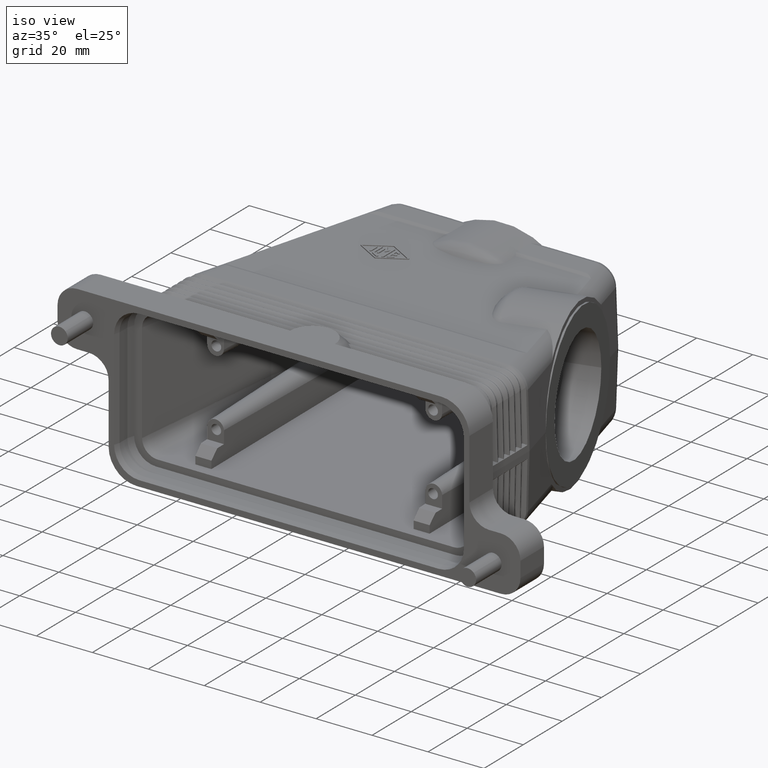
[diagram: clean part render]
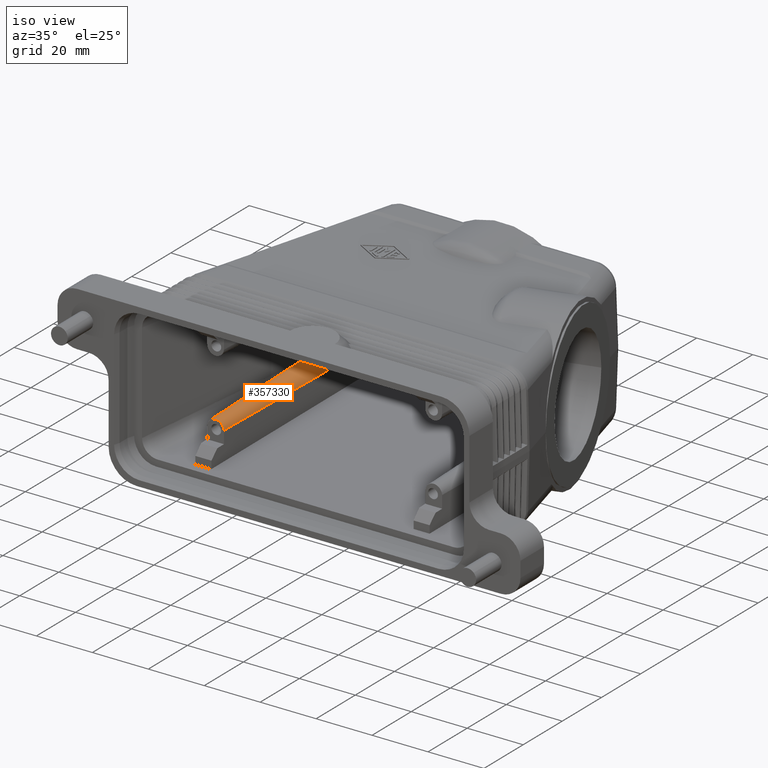
[diagram: same view with one face highlighted and labeled with its STEP entity id]
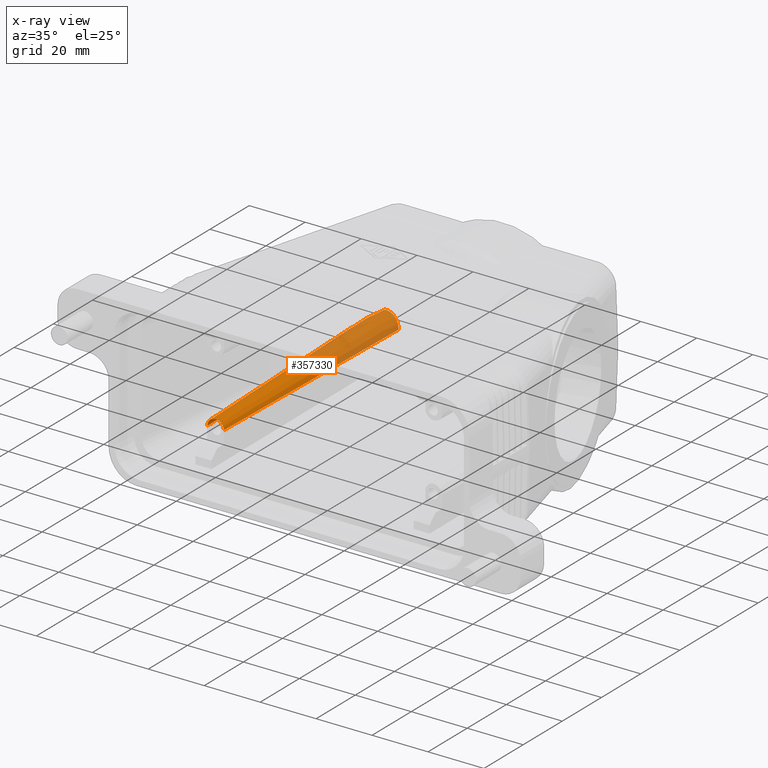
[diagram: x-ray of the same camera — body ghosted, the highlighted face saturated]
A machine part, iso view. The second image highlights one B-rep face of the part: STEP entity #357330.
The next image is the same camera in x-ray: the body ghosted, the highlighted face saturated — about 51% of this face is hidden behind the body in this view.
In plain terms, the highlighted conical surface has half-angle 1.333 deg.
Its self-contained STEP definition (entity closure, byte-faithful):
#356670=CARTESIAN_POINT('',(-62.1104389494931,14.294143,
-0.254655050506926));
#356680=DIRECTION('',(0.,1.,0.));
#356690=DIRECTION('',(-1.,0.,0.));
#356700=AXIS2_PLACEMENT_3D('',#356670,#356680,#356690);
#356710=CONICAL_SURFACE('',#356700,3.,0.0232710508754936);
#356720=CARTESIAN_POINT('',(-62.1104389494931,14.494143,
-0.254655050506926));
#356730=DIRECTION('',(0.,-1.,0.));
#356740=DIRECTION('',(-1.,0.,0.));
#356750=AXIS2_PLACEMENT_3D('',#356720,#356730,#356740);
#356760=CIRCLE('',#356750,3.00465505050693);
#356770=CARTESIAN_POINT('',(-59.115094,14.4941429999999,
-0.0183065660962711));
#356780=VERTEX_POINT('',#356770);
#356790=CARTESIAN_POINT('',(-65.115094,14.494143,-0.254655050506926));
#356800=VERTEX_POINT('',#356790);
#356810=EDGE_CURVE('',#356780,#356800,#356760,.T.);
#356820=ORIENTED_EDGE('',*,*,#356810,.F.);
#356830=CARTESIAN_POINT('',(-65.1104389494931,14.294143,
-0.254655050506926));
#356840=DIRECTION('',(-0.0232689505578674,0.999729241314835,0.));
#356850=VECTOR('',#356840,1.);
#356860=LINE('',#356830,#356850);
#356870=CARTESIAN_POINT('',(-66.7851224582123,86.2453927759903,
-0.254655050506926));
#356880=VERTEX_POINT('',#356870);
#356890=EDGE_CURVE('',#356800,#356880,#356860,.T.);
#356900=ORIENTED_EDGE('',*,*,#356890,.F.);
#356910=CARTESIAN_POINT('',(-61.6657473765737,105.351160683668,
-0.254655050506926));
#356920=DIRECTION('',(-0.965925826289068,0.258819045102521,0.));
#356930=DIRECTION('',(0.258819045102521,0.965925826289068,0.));
#356940=AXIS2_PLACEMENT_3D('',#356910,#356920,#356930);
#356950=ELLIPSE('',#356940,19.7797464232617,5.1000245716542);
#356960=CARTESIAN_POINT('',(-62.6818657931249,101.558955126592,
4.74389920291448));
#356970=VERTEX_POINT('',#356960);
#356980=EDGE_CURVE('',#356880,#356970,#356950,.T.);
#356990=ORIENTED_EDGE('',*,*,#356980,.F.);
#357000=CARTESIAN_POINT('',(-62.1104389494931,100.681201154389,
-0.234090941737257));
#357010=DIRECTION('',(0.,0.984807753012208,-0.17364817766693));
#357020=DIRECTION('',(0.,-0.17364817766693,-0.984807753012208));
#357030=AXIS2_PLACEMENT_3D('',#357000,#357010,#357020);
#357040=ELLIPSE('',#357030,5.08797841907929,5.01063839597364);
#357050=CARTESIAN_POINT('',(-57.1078997038268,100.731415535968,
0.0506889675936861));
#357060=VERTEX_POINT('',#357050);
#357070=EDGE_CURVE('',#356970,#357060,#357040,.T.);
#357080=ORIENTED_EDGE('',*,*,#357070,.F.);
#357090=CARTESIAN_POINT('',(-59.119749050507,14.294143,-0.5));
#357100=DIRECTION('',(-0.999729241314835,0.0232689505578674,0.));
#357110=DIRECTION('',(0.,0.,1.));
#357120=AXIS2_PLACEMENT_3D('',#357090,#357100,#357110);
#357130=PLANE('',#357120);
#357140=CARTESIAN_POINT('',(-59.115094,14.494143,-0.0183065660963695));
#357150=CARTESIAN_POINT('',(-58.9478278237061,21.6805817312205,
-0.0117177148863366));
#357160=CARTESIAN_POINT('',(-58.7805616420334,28.8670206936414,
-0.00540245131143904));
#357170=CARTESIAN_POINT('',(-58.6132954564731,36.0534598229824,
0.000696073190831703));
#357180=CARTESIAN_POINT('',(-58.4460292709048,43.2398989526711,
0.00679459769339753));
#357190=CARTESIAN_POINT('',(-58.2787630814138,50.4263382507931,
0.0126758067128467));
#357200=CARTESIAN_POINT('',(-58.1114968889819,57.6127776753691,
0.0183793558319051));
#357210=CARTESIAN_POINT('',(-57.9442306965444,64.7992171001849,
0.0240829049511538));
#357220=CARTESIAN_POINT('',(-57.7769645011461,71.9856566522082,
0.0296084804128359));
#357230=CARTESIAN_POINT('',(-57.6096983034421,79.1720963032981,
0.0349850331915367));
#357240=CARTESIAN_POINT('',(-57.4424321057348,86.3585359545245,
0.0403615859703396));
#357250=CARTESIAN_POINT('',(-57.2751659057132,93.5449757051915,
0.0455889324089787));
#357260=CARTESIAN_POINT('',(-57.1078997038269,100.731415535968,
0.0506889675938988));
#357270=B_SPLINE_CURVE_WITH_KNOTS('',3,(#357140,#357150,#357160,#357170,
#357180,#357190,#357200,#357210,#357220,#357230,#357240,#357250,#357260)
,.UNSPECIFIED.,.F.,.F.,(4,3,3,3,4),(0.,21.5651639075933,43.1303282380674
,64.6954919307877,86.2606543863852),.UNSPECIFIED.);
#357280=SURFACE_CURVE('',#357270,(#356710,#357130),.CURVE_3D.);
#357290=EDGE_CURVE('',#356780,#357060,#357280,.T.);
#357300=ORIENTED_EDGE('',*,*,#357290,.T.);
#357310=EDGE_LOOP('',(#357300,#357080,#356990,#356900,#356820));
#357320=FACE_OUTER_BOUND('',#357310,.T.);
#357330=ADVANCED_FACE('',(#357320),#356710,.T.);